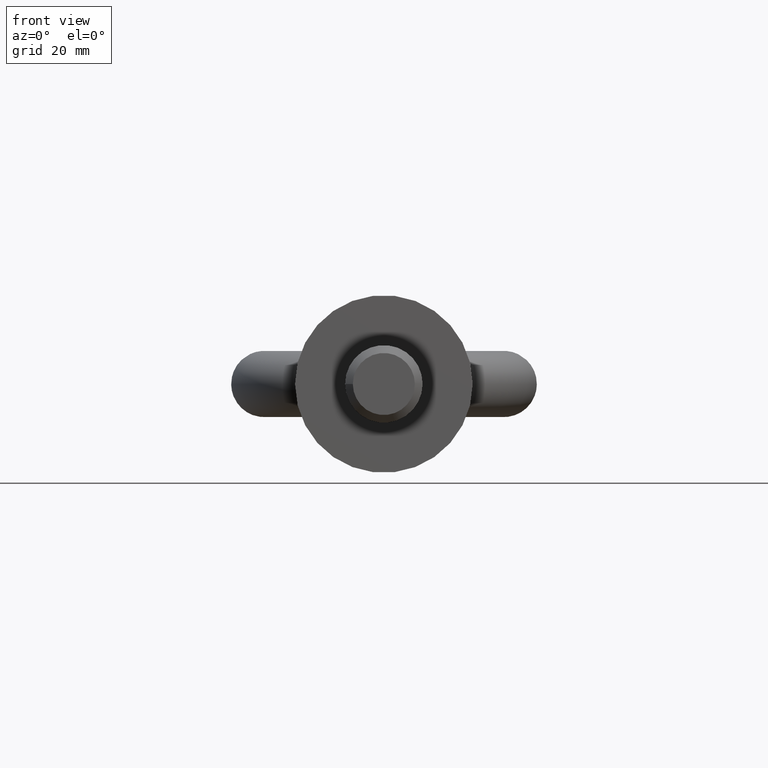
[diagram: clean part render]
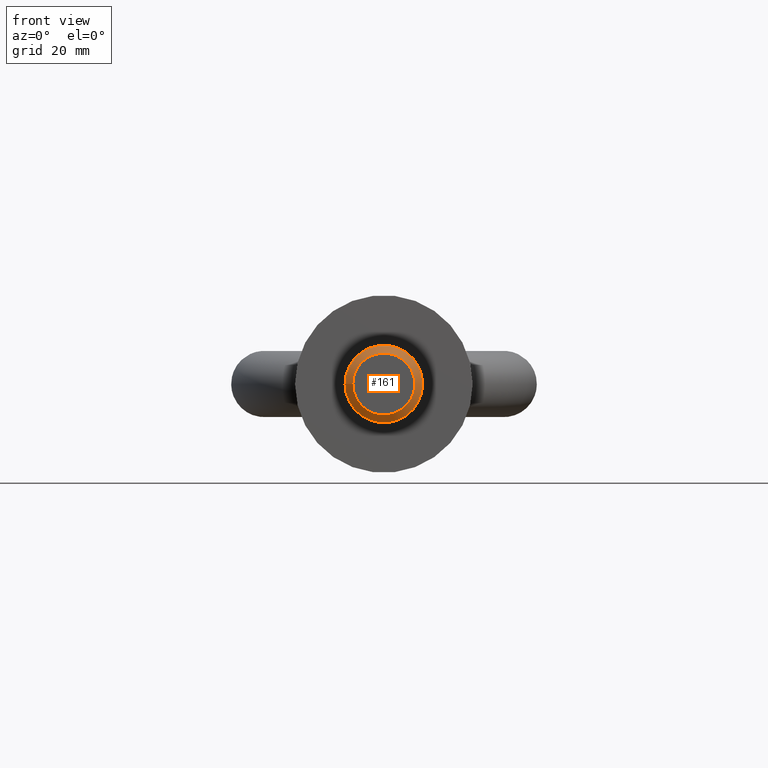
[diagram: same view with one face highlighted and labeled with its STEP entity id]
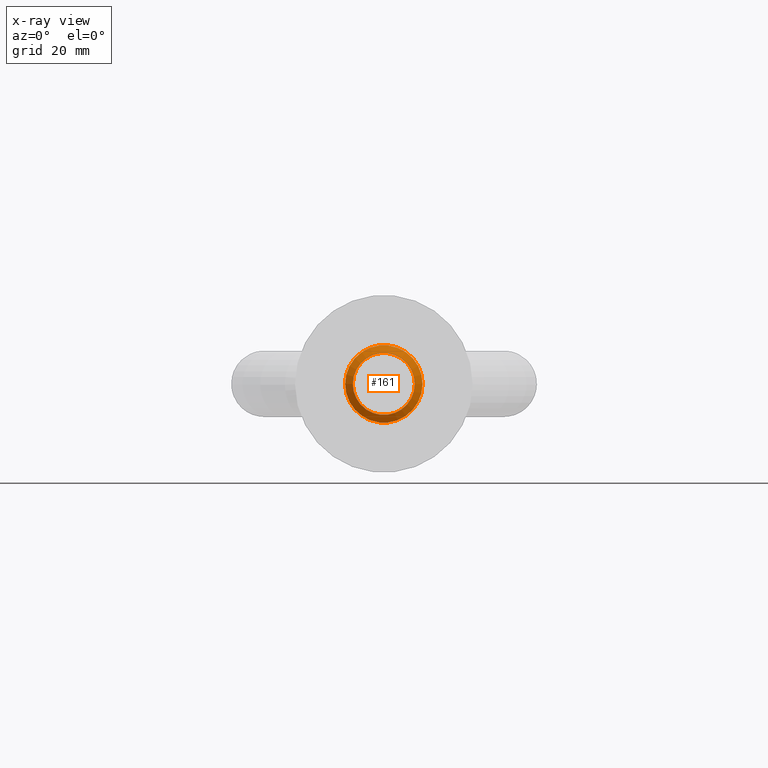
[diagram: x-ray of the same camera — body ghosted, the highlighted face saturated]
A machine part, front view. The second image highlights one B-rep face of the part: STEP entity #161.
The next image is the same camera in x-ray: the body ghosted, the highlighted face saturated — about 0% of this face is hidden behind the body in this view.
In plain terms, the highlighted conical surface has half-angle 45 deg.
Its self-contained STEP definition (entity closure, byte-faithful):
#70=CONICAL_SURFACE('',#717,12.,45.);
#88=FACE_BOUND('',#266,.T.);
#89=FACE_BOUND('',#267,.T.);
#161=ADVANCED_FACE('',(#88,#89),#70,.T.);
#266=EDGE_LOOP('',(#477));
#267=EDGE_LOOP('',(#478));
#276=CIRCLE('',#668,9.6);
#277=CIRCLE('',#670,12.);
#477=ORIENTED_EDGE('',*,*,#562,.F.);
#478=ORIENTED_EDGE('',*,*,#563,.F.);
#503=VERTEX_POINT('',#1130);
#504=VERTEX_POINT('',#1133);
#562=EDGE_CURVE('',#503,#503,#276,.T.);
#563=EDGE_CURVE('',#504,#504,#277,.T.);
#668=AXIS2_PLACEMENT_3D('',#1129,#766,#767);
#670=AXIS2_PLACEMENT_3D('',#1132,#770,#771);
#717=AXIS2_PLACEMENT_3D('',#1579,#866,#867);
#766=DIRECTION('',(2.41421590200679E-18,-1.,0.));
#767=DIRECTION('',(-1.,0.,0.));
#770=DIRECTION('',(-2.41421590200679E-18,1.,0.));
#771=DIRECTION('',(-1.,0.,0.));
#866=DIRECTION('',(-2.41421590200679E-18,1.,0.));
#867=DIRECTION('',(-1.,0.,0.));
#1129=CARTESIAN_POINT('',(2.74617058853272E-16,-84.,0.));
#1130=CARTESIAN_POINT('',(-9.6,-84.,0.));
#1132=CARTESIAN_POINT('',(2.68822940688455E-16,-81.6,0.));
#1133=CARTESIAN_POINT('',(-12.,-81.6,0.));
#1579=CARTESIAN_POINT('',(2.68822940688455E-16,-81.6,0.));